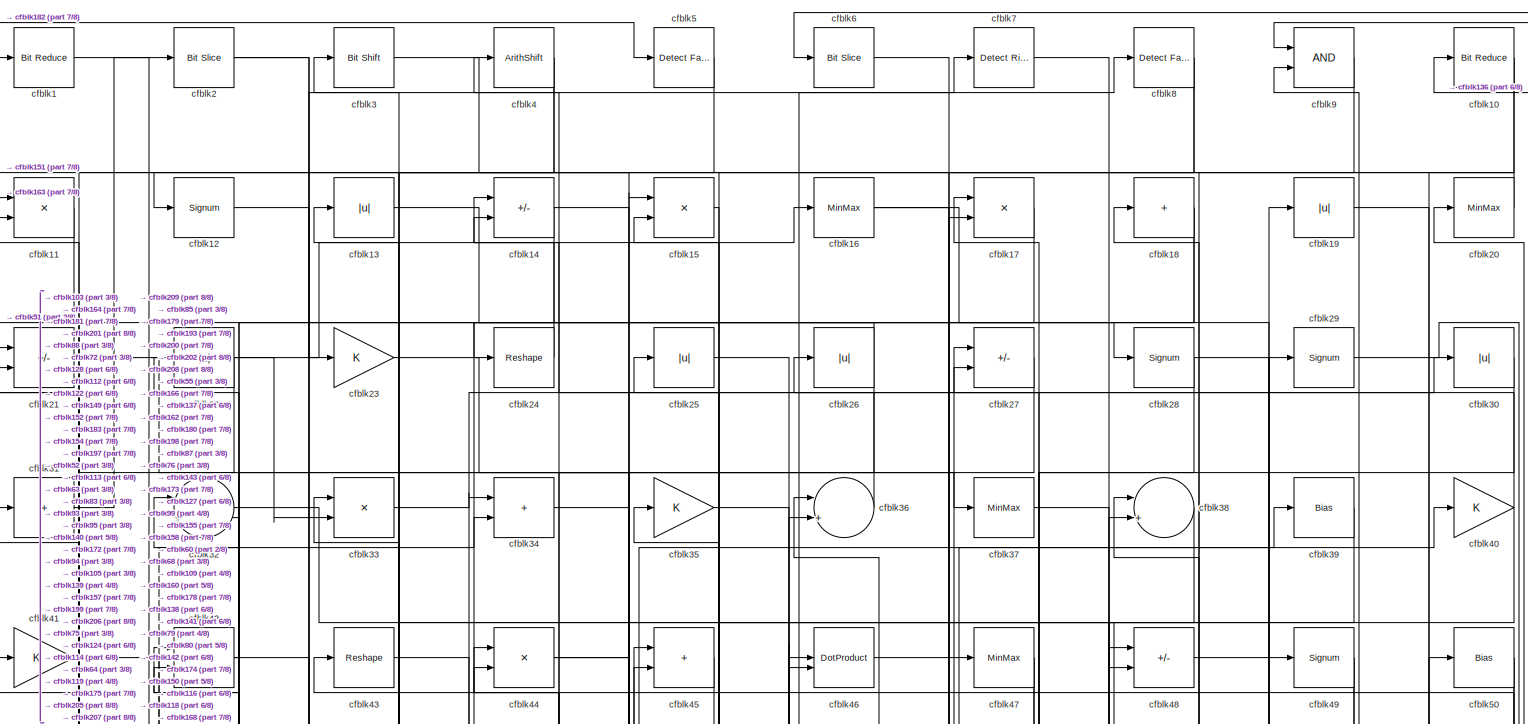
[diagram: root canvas - part 1/8, full width, top band]
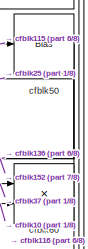
[diagram: root canvas - part 2/8, top right region]
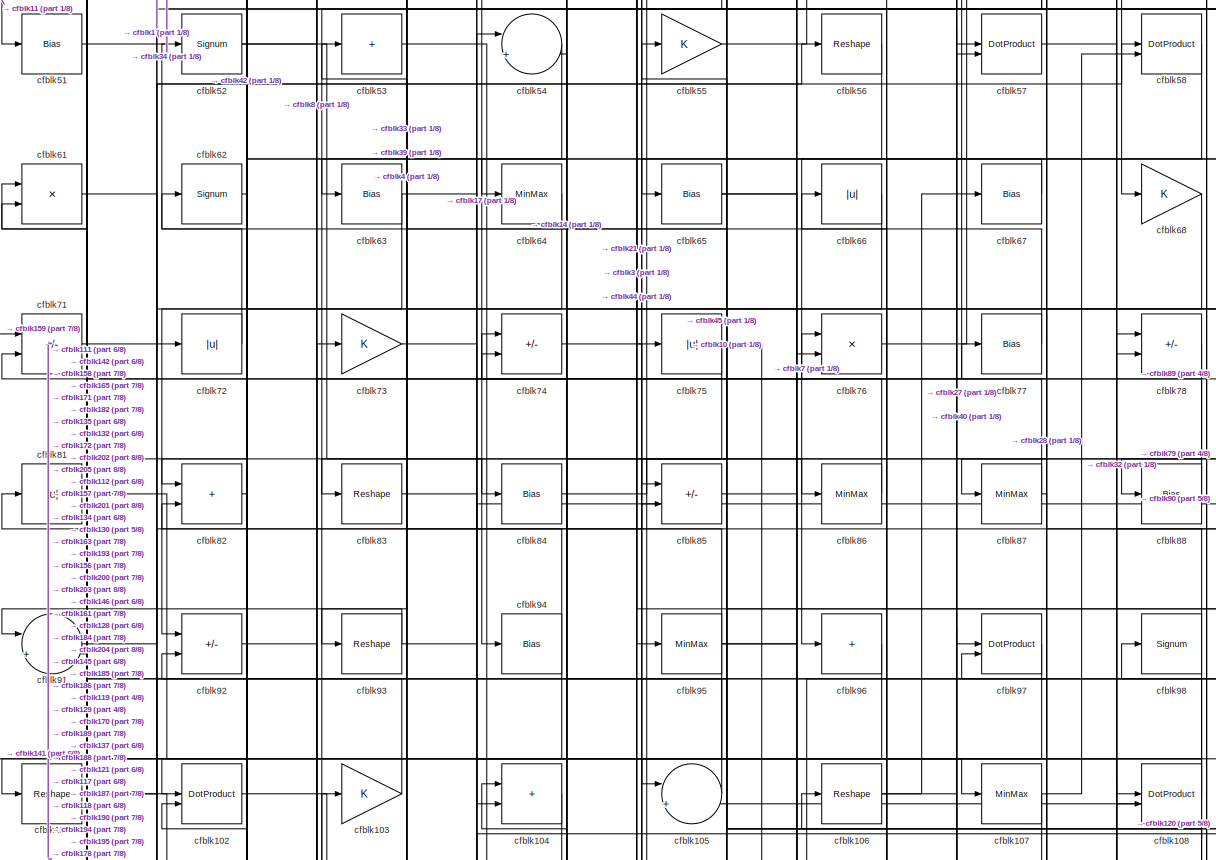
[diagram: root canvas - part 3/8, full width, middle band]
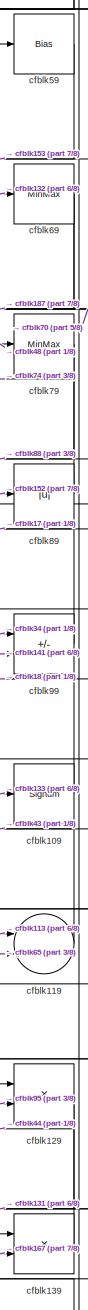
[diagram: root canvas - part 4/8, middle right region]
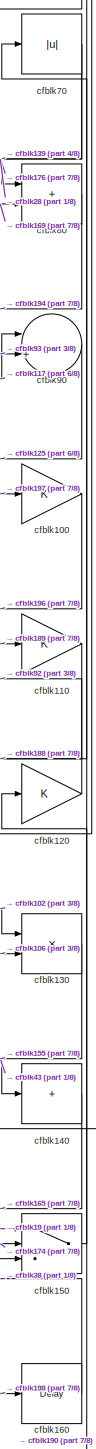
[diagram: root canvas - part 5/8, middle right region]
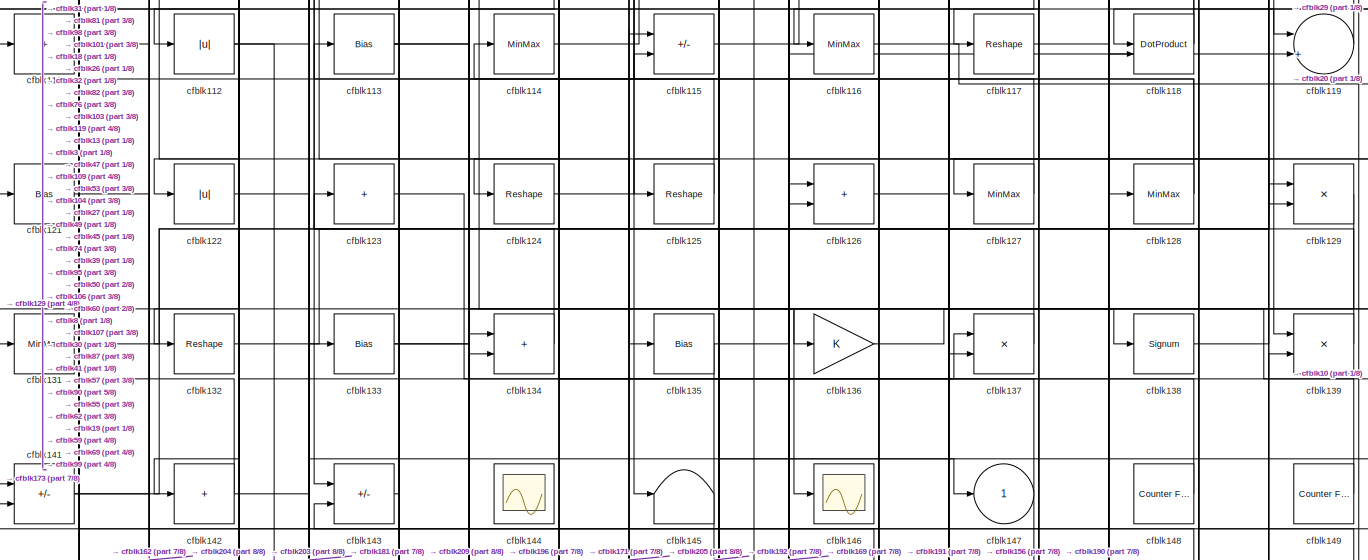
[diagram: root canvas - part 6/8, full width, middle band]
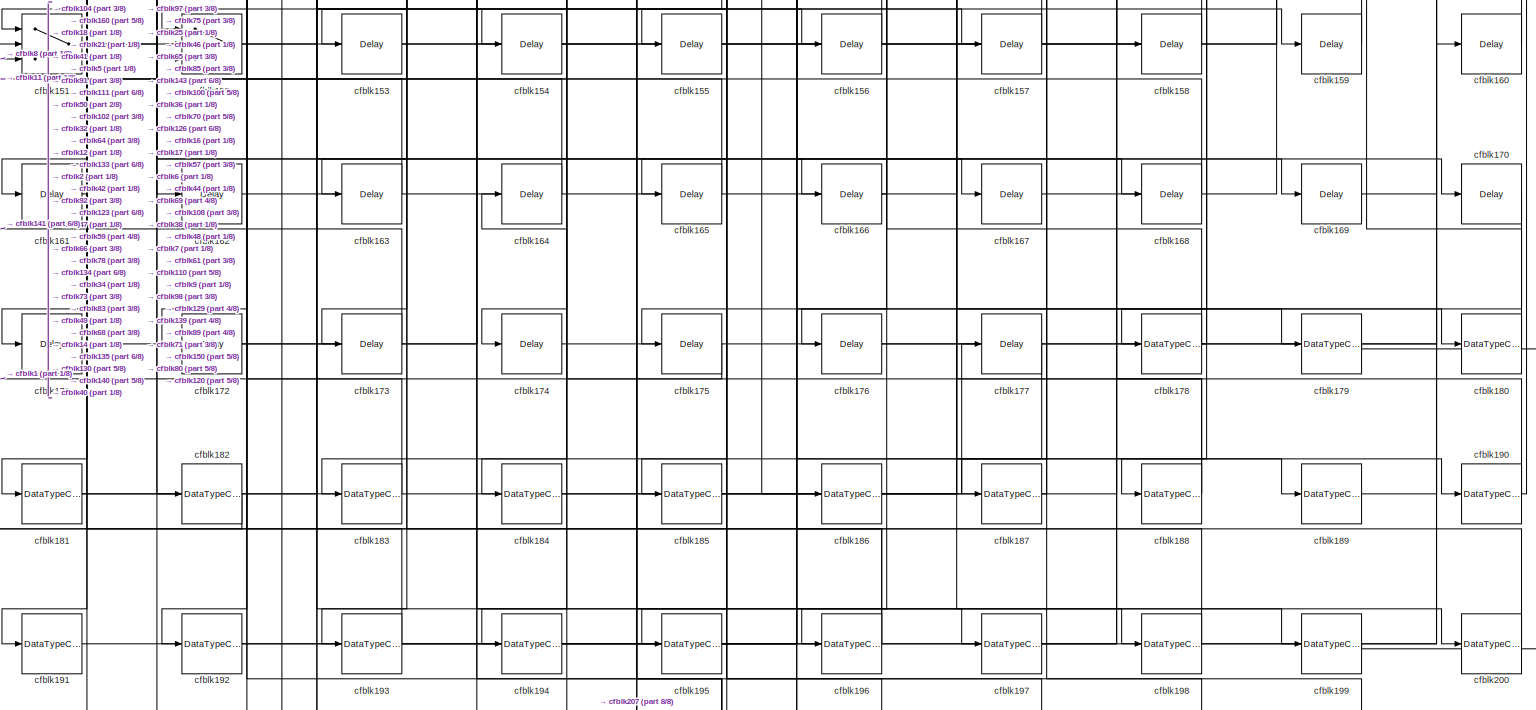
[diagram: root canvas - part 7/8, full width, bottom band]
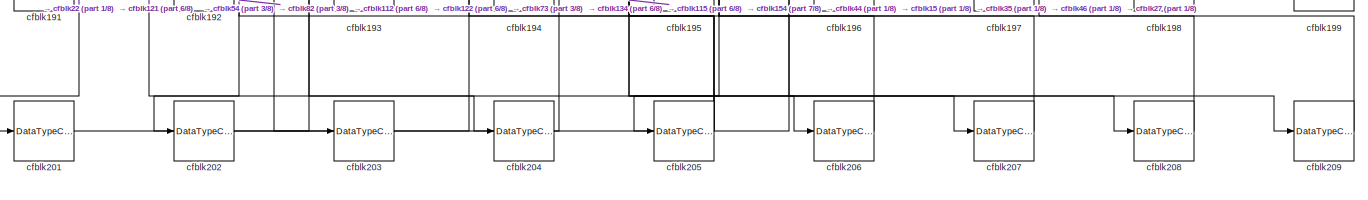
[diagram: root canvas - part 8/8, full width, bottom band]
MODEL slx_c928e4ad2542
KIND model
CONFIG AbsTol = auto
CONFIG EnableMultiTasking = off
CONFIG FixedStep = auto
CONFIG MaxStep = auto
CONFIG MinStep = auto
CONFIG RelTol = 1e-3
CONFIG SampleTimeConstraint = Unconstrained
CONFIG SolverName = VariableStepAuto
CONFIG StartTime = 0.0
CONFIG StopTime = 10.0
BLOCK [Reference] cfblk1  REF=hdlsllib/Logic and Bit
Operations/Bit Reduce
  SourceBlock = hdlsllib/Logic and Bit\nOperations/Bit Reduce
  SourceType = Bit Reduce
BLOCK [Reference] cfblk10  REF=hdlsllib/Logic and Bit
Operations/Bit Reduce
  SourceBlock = hdlsllib/Logic and Bit\nOperations/Bit Reduce
  SourceType = Bit Reduce
BLOCK [Gain] cfblk100
BLOCK [Reshape] cfblk101
BLOCK [DotProduct] cfblk102
  OutDataTypeStr = Inherit: Inherit via internal rule
BLOCK [Gain] cfblk103
BLOCK [Sum] cfblk104
  IconShape = rectangular
BLOCK [Sum] cfblk105
  Inputs = |++
BLOCK [Reshape] cfblk106
BLOCK [MinMax] cfblk107
BLOCK [DotProduct] cfblk108
  OutDataTypeStr = Inherit: Inherit via internal rule
BLOCK [Signum] cfblk109
BLOCK [Product] cfblk11
  Inputs = */
  RndMeth = Zero
  SaturateOnIntegerOverflow = on
BLOCK [Gain] cfblk110
BLOCK [Sum] cfblk111
  IconShape = rectangular
  Inputs = +
BLOCK [Abs] cfblk112
  SaturateOnIntegerOverflow = off
BLOCK [Bias] cfblk113
  Bias = 0.0
  SaturateOnIntegerOverflow = off
BLOCK [MinMax] cfblk114
BLOCK [Sum] cfblk115
  IconShape = rectangular
  Inputs = +-
BLOCK [MinMax] cfblk116
BLOCK [Reshape] cfblk117
BLOCK [DotProduct] cfblk118
  OutDataTypeStr = Inherit: Inherit via internal rule
BLOCK [Sum] cfblk119
  Inputs = |++
BLOCK [Signum] cfblk12
BLOCK [Gain] cfblk120
BLOCK [Bias] cfblk121
  Bias = 0.0
  SaturateOnIntegerOverflow = off
BLOCK [Abs] cfblk122
  SaturateOnIntegerOverflow = off
BLOCK [Sum] cfblk123
  IconShape = rectangular
  Inputs = +
BLOCK [Reshape] cfblk124
BLOCK [Reshape] cfblk125
BLOCK [Sum] cfblk126
  IconShape = rectangular
BLOCK [MinMax] cfblk127
BLOCK [MinMax] cfblk128
BLOCK [Product] cfblk129
  Inputs = */
  RndMeth = Zero
  SaturateOnIntegerOverflow = on
BLOCK [Abs] cfblk13
  SaturateOnIntegerOverflow = off
BLOCK [Product] cfblk130
  Inputs = */
  RndMeth = Zero
  SaturateOnIntegerOverflow = on
BLOCK [MinMax] cfblk131
BLOCK [Reshape] cfblk132
BLOCK [Bias] cfblk133
  Bias = 0.0
  SaturateOnIntegerOverflow = off
BLOCK [Sum] cfblk134
  IconShape = rectangular
BLOCK [Bias] cfblk135
  Bias = 0.0
  SaturateOnIntegerOverflow = off
BLOCK [Gain] cfblk136
BLOCK [Product] cfblk137
  Inputs = */
  RndMeth = Zero
  SaturateOnIntegerOverflow = on
BLOCK [Signum] cfblk138
BLOCK [Product] cfblk139
  Inputs = */
  RndMeth = Zero
  SaturateOnIntegerOverflow = on
BLOCK [Sum] cfblk14
  IconShape = rectangular
  Inputs = +-
BLOCK [Sum] cfblk140
  IconShape = rectangular
  Inputs = +
BLOCK [Sum] cfblk141
  IconShape = rectangular
  Inputs = +-
BLOCK [Sum] cfblk142
  IconShape = rectangular
  Inputs = +
BLOCK [Sum] cfblk143
  IconShape = rectangular
  Inputs = +-
BLOCK [Scope] cfblk144
  Floating = on
  NumInputPorts = 1
  ScopeSpecificationString = Simulink.scopes.TimeScopeBlockCfg('CurrentConfiguration', extmgr.ConfigurationSet(extmgr.Configuration('Core','General UI',true,'FigureColor',[0.156862745098039 0.156862745098039 0.156862745098039]),extmgr.Configuration('Core','Source UI',true),extmgr.Configuration('Sources','WiredSimulink',true,'DataLoggingVariableName','ScopeData1','DataLoggingSaveFormat','StructureWithTime','DataLoggingLimitDat...<+2713ch>
BLOCK [Terminator] cfblk145
BLOCK [Scope] cfblk146
  Floating = off
  NumInputPorts = 1
  ScopeSpecificationString = Simulink.scopes.TimeScopeBlockCfg('CurrentConfiguration', extmgr.ConfigurationSet(extmgr.Configuration('Core','General UI',true),extmgr.Configuration('Core','Source UI',true),extmgr.Configuration('Sources','WiredSimulink',true,'DataLoggingVariableName','ScopeData2','DataLoggingSaveFormat','Array','DataLoggingLimitDataPoints',true,'DataLoggingDecimation','1'),extmgr.Configuration('Visuals','Time Do...<+868ch>
BLOCK [Outport] cfblk147
  VectorParamsAs1DForOutWhenUnconnected = off
BLOCK [Reference] cfblk148  REF=hdlsllib/Sources/Counter
Free-Running
  SourceBlock = hdlsllib/Sources/Counter\nFree-Running
  SourceType = Counter Free-Running
BLOCK [Reference] cfblk149  REF=hdlsllib/Sources/Counter
Free-Running
  SourceBlock = hdlsllib/Sources/Counter\nFree-Running
  SourceType = Counter Free-Running
BLOCK [Product] cfblk15
  Inputs = */
  RndMeth = Zero
  SaturateOnIntegerOverflow = on
BLOCK [Switch] cfblk150
  InputSameDT = off
  SaturateOnIntegerOverflow = off
BLOCK [Switch] cfblk151
  InputSameDT = off
  SaturateOnIntegerOverflow = off
BLOCK [Switch] cfblk152
  InputSameDT = off
  SaturateOnIntegerOverflow = off
BLOCK [Delay] cfblk153
  InputPortMap = u0
  SampleTime = 1
BLOCK [Delay] cfblk154
  InputPortMap = u0
  SampleTime = 1
BLOCK [Delay] cfblk155
  InputPortMap = u0
  SampleTime = 1
BLOCK [Delay] cfblk156
  InputPortMap = u0
  SampleTime = 1
BLOCK [Delay] cfblk157
  InputPortMap = u0
  SampleTime = 1
BLOCK [Delay] cfblk158
  InputPortMap = u0
  SampleTime = 1
BLOCK [Delay] cfblk159
  InputPortMap = u0
  SampleTime = 1
BLOCK [MinMax] cfblk16
BLOCK [Delay] cfblk160
  InputPortMap = u0
  SampleTime = 1
BLOCK [Delay] cfblk161
  InputPortMap = u0
  SampleTime = 1
BLOCK [Delay] cfblk162
  InputPortMap = u0
  SampleTime = 1
BLOCK [Delay] cfblk163
  InputPortMap = u0
  SampleTime = 1
BLOCK [Delay] cfblk164
  InputPortMap = u0
  SampleTime = 1
BLOCK [Delay] cfblk165
  InputPortMap = u0
  SampleTime = 1
BLOCK [Delay] cfblk166
  InputPortMap = u0
  SampleTime = 1
BLOCK [Delay] cfblk167
  InputPortMap = u0
  SampleTime = 1
BLOCK [Delay] cfblk168
  InputPortMap = u0
  SampleTime = 1
BLOCK [Delay] cfblk169
  InputPortMap = u0
  SampleTime = 1
BLOCK [Product] cfblk17
  Inputs = */
  RndMeth = Zero
  SaturateOnIntegerOverflow = on
BLOCK [Delay] cfblk170
  InputPortMap = u0
  SampleTime = 1
BLOCK [Delay] cfblk171
  InputPortMap = u0
  SampleTime = 1
BLOCK [Delay] cfblk172
  InputPortMap = u0
  SampleTime = 1
BLOCK [Delay] cfblk173
  InputPortMap = u0
  SampleTime = 1
BLOCK [Delay] cfblk174
  InputPortMap = u0
  SampleTime = 1
BLOCK [Delay] cfblk175
  InputPortMap = u0
  SampleTime = 1
BLOCK [Delay] cfblk176
  InputPortMap = u0
  SampleTime = 1
BLOCK [Delay] cfblk177
  InputPortMap = u0
  SampleTime = 1
BLOCK [DataTypeConversion] cfblk178
  RndMeth = Floor
  SaturateOnIntegerOverflow = off
BLOCK [DataTypeConversion] cfblk179
  OutDataTypeStr = uint8
  RndMeth = Floor
  SaturateOnIntegerOverflow = off
BLOCK [Sum] cfblk18
  IconShape = rectangular
  Inputs = +
BLOCK [DataTypeConversion] cfblk180
  OutDataTypeStr = uint8
  RndMeth = Floor
  SaturateOnIntegerOverflow = off
BLOCK [DataTypeConversion] cfblk181
  RndMeth = Floor
  SaturateOnIntegerOverflow = off
BLOCK [DataTypeConversion] cfblk182
  OutDataTypeStr = uint8
  RndMeth = Floor
  SaturateOnIntegerOverflow = off
BLOCK [DataTypeConversion] cfblk183
  OutDataTypeStr = uint8
  RndMeth = Floor
  SaturateOnIntegerOverflow = off
BLOCK [DataTypeConversion] cfblk184
  OutDataTypeStr = uint8
  RndMeth = Floor
  SaturateOnIntegerOverflow = off
BLOCK [DataTypeConversion] cfblk185
  OutDataTypeStr = uint8
  RndMeth = Floor
  SaturateOnIntegerOverflow = off
BLOCK [DataTypeConversion] cfblk186
  OutDataTypeStr = uint8
  RndMeth = Floor
  SaturateOnIntegerOverflow = off
BLOCK [DataTypeConversion] cfblk187
  OutDataTypeStr = uint8
  RndMeth = Floor
  SaturateOnIntegerOverflow = off
BLOCK [DataTypeConversion] cfblk188
  RndMeth = Floor
  SaturateOnIntegerOverflow = off
BLOCK [DataTypeConversion] cfblk189
  OutDataTypeStr = uint8
  RndMeth = Floor
  SaturateOnIntegerOverflow = off
BLOCK [Abs] cfblk19
  SaturateOnIntegerOverflow = off
BLOCK [DataTypeConversion] cfblk190
  RndMeth = Floor
  SaturateOnIntegerOverflow = off
BLOCK [DataTypeConversion] cfblk191
  OutDataTypeStr = uint8
  RndMeth = Floor
  SaturateOnIntegerOverflow = off
BLOCK [DataTypeConversion] cfblk192
  OutDataTypeStr = uint8
  RndMeth = Floor
  SaturateOnIntegerOverflow = off
BLOCK [DataTypeConversion] cfblk193
  RndMeth = Floor
  SaturateOnIntegerOverflow = off
BLOCK [DataTypeConversion] cfblk194
  OutDataTypeStr = uint8
  RndMeth = Floor
  SaturateOnIntegerOverflow = off
BLOCK [DataTypeConversion] cfblk195
  OutDataTypeStr = uint8
  RndMeth = Floor
  SaturateOnIntegerOverflow = off
BLOCK [DataTypeConversion] cfblk196
  RndMeth = Floor
  SaturateOnIntegerOverflow = off
BLOCK [DataTypeConversion] cfblk197
  OutDataTypeStr = uint8
  RndMeth = Floor
  SaturateOnIntegerOverflow = off
BLOCK [DataTypeConversion] cfblk198
  RndMeth = Floor
  SaturateOnIntegerOverflow = off
BLOCK [DataTypeConversion] cfblk199
  OutDataTypeStr = uint8
  RndMeth = Floor
  SaturateOnIntegerOverflow = off
BLOCK [Reference] cfblk2  REF=hdlsllib/Logic and Bit
Operations/Bit Slice
  SourceBlock = hdlsllib/Logic and Bit\nOperations/Bit Slice
  SourceType = Bit Slice
BLOCK [MinMax] cfblk20
BLOCK [DataTypeConversion] cfblk200
  OutDataTypeStr = uint8
  RndMeth = Floor
  SaturateOnIntegerOverflow = off
BLOCK [DataTypeConversion] cfblk201
  OutDataTypeStr = uint8
  RndMeth = Floor
  SaturateOnIntegerOverflow = off
BLOCK [DataTypeConversion] cfblk202
  OutDataTypeStr = uint8
  RndMeth = Floor
  SaturateOnIntegerOverflow = off
BLOCK [DataTypeConversion] cfblk203
  OutDataTypeStr = uint8
  RndMeth = Floor
  SaturateOnIntegerOverflow = off
BLOCK [DataTypeConversion] cfblk204
  OutDataTypeStr = uint8
  RndMeth = Floor
  SaturateOnIntegerOverflow = off
BLOCK [DataTypeConversion] cfblk205
  RndMeth = Floor
  SaturateOnIntegerOverflow = off
BLOCK [DataTypeConversion] cfblk206
  OutDataTypeStr = uint8
  RndMeth = Floor
  SaturateOnIntegerOverflow = off
BLOCK [DataTypeConversion] cfblk207
  OutDataTypeStr = uint8
  RndMeth = Floor
  SaturateOnIntegerOverflow = off
BLOCK [DataTypeConversion] cfblk208
  OutDataTypeStr = uint8
  RndMeth = Floor
  SaturateOnIntegerOverflow = off
BLOCK [DataTypeConversion] cfblk209
  OutDataTypeStr = uint8
  RndMeth = Floor
  SaturateOnIntegerOverflow = off
BLOCK [Sum] cfblk21
  IconShape = rectangular
  Inputs = +-
BLOCK [Abs] cfblk22
  SaturateOnIntegerOverflow = off
BLOCK [Gain] cfblk23
BLOCK [Reshape] cfblk24
BLOCK [Abs] cfblk25
  SaturateOnIntegerOverflow = off
BLOCK [Abs] cfblk26
  SaturateOnIntegerOverflow = off
BLOCK [Sum] cfblk27
  IconShape = rectangular
  Inputs = +-
BLOCK [Signum] cfblk28
BLOCK [Signum] cfblk29
BLOCK [Reference] cfblk3  REF=hdlsllib/Logic and Bit
Operations/Bit Shift
  SourceBlock = hdlsllib/Logic and Bit\nOperations/Bit Shift
  SourceType = Bit Shift
BLOCK [Abs] cfblk30
  SaturateOnIntegerOverflow = off
BLOCK [Sum] cfblk31
  IconShape = rectangular
  Inputs = +
BLOCK [Sum] cfblk32
  Inputs = |++
BLOCK [Product] cfblk33
  Inputs = */
  RndMeth = Zero
  SaturateOnIntegerOverflow = on
BLOCK [Sum] cfblk34
  IconShape = rectangular
BLOCK [Gain] cfblk35
BLOCK [Sum] cfblk36
  Inputs = |++
BLOCK [MinMax] cfblk37
BLOCK [Sum] cfblk38
  Inputs = |++
BLOCK [Bias] cfblk39
  Bias = 0.0
  SaturateOnIntegerOverflow = off
BLOCK [ArithShift] cfblk4
  BitShiftNumber = 8
  InputPortMap = u0
BLOCK [Gain] cfblk40
BLOCK [Gain] cfblk41
BLOCK [Product] cfblk42
  Inputs = */
  RndMeth = Zero
  SaturateOnIntegerOverflow = on
BLOCK [Reshape] cfblk43
BLOCK [Product] cfblk44
  Inputs = */
  RndMeth = Zero
  SaturateOnIntegerOverflow = on
BLOCK [Sum] cfblk45
  IconShape = rectangular
BLOCK [DotProduct] cfblk46
  OutDataTypeStr = Inherit: Inherit via internal rule
BLOCK [MinMax] cfblk47
BLOCK [Sum] cfblk48
  IconShape = rectangular
  Inputs = +-
BLOCK [Signum] cfblk49
BLOCK [Reference] cfblk5  REF=hdlsllib/Logic and Bit
Operations/Detect Fall
Nonpositive
  SourceBlock = hdlsllib/Logic and Bit\nOperations/Detect Fall\nNonpositive
  SourceType = Detect Fall Nonpositive
BLOCK [Bias] cfblk50
  Bias = 0.0
  SaturateOnIntegerOverflow = off
BLOCK [Bias] cfblk51
  Bias = 0.0
  SaturateOnIntegerOverflow = off
BLOCK [Signum] cfblk52
BLOCK [Sum] cfblk53
  IconShape = rectangular
  Inputs = +
BLOCK [Sum] cfblk54
  Inputs = |++
BLOCK [Gain] cfblk55
BLOCK [Reshape] cfblk56
BLOCK [DotProduct] cfblk57
  OutDataTypeStr = Inherit: Inherit via internal rule
BLOCK [DotProduct] cfblk58
  OutDataTypeStr = Inherit: Inherit via internal rule
BLOCK [Bias] cfblk59
  Bias = 0.0
  SaturateOnIntegerOverflow = off
BLOCK [Reference] cfblk6  REF=hdlsllib/Logic and Bit
Operations/Bit Slice
  SourceBlock = hdlsllib/Logic and Bit\nOperations/Bit Slice
  SourceType = Bit Slice
BLOCK [Product] cfblk60
  Inputs = */
  RndMeth = Zero
  SaturateOnIntegerOverflow = on
BLOCK [Product] cfblk61
  Inputs = */
  RndMeth = Zero
  SaturateOnIntegerOverflow = on
BLOCK [Signum] cfblk62
BLOCK [Bias] cfblk63
  Bias = 0.0
  SaturateOnIntegerOverflow = off
BLOCK [MinMax] cfblk64
BLOCK [Bias] cfblk65
  Bias = 0.0
  SaturateOnIntegerOverflow = off
BLOCK [Abs] cfblk66
  SaturateOnIntegerOverflow = off
BLOCK [Bias] cfblk67
  Bias = 0.0
  SaturateOnIntegerOverflow = off
BLOCK [Gain] cfblk68
BLOCK [MinMax] cfblk69
BLOCK [Reference] cfblk7  REF=hdlsllib/Logic and Bit
Operations/Detect Rise
Nonnegative
  SourceBlock = hdlsllib/Logic and Bit\nOperations/Detect Rise\nNonnegative
  SourceType = Detect Rise Nonnegative
BLOCK [Abs] cfblk70
  SaturateOnIntegerOverflow = off
BLOCK [Sum] cfblk71
  IconShape = rectangular
  Inputs = +-
BLOCK [Abs] cfblk72
  SaturateOnIntegerOverflow = off
BLOCK [Gain] cfblk73
BLOCK [Sum] cfblk74
  IconShape = rectangular
  Inputs = +-
BLOCK [Abs] cfblk75
  SaturateOnIntegerOverflow = off
BLOCK [Product] cfblk76
  Inputs = */
  RndMeth = Zero
  SaturateOnIntegerOverflow = on
BLOCK [Bias] cfblk77
  Bias = 0.0
  SaturateOnIntegerOverflow = off
BLOCK [Sum] cfblk78
  IconShape = rectangular
  Inputs = +-
BLOCK [MinMax] cfblk79
BLOCK [Reference] cfblk8  REF=hdlsllib/Logic and Bit
Operations/Detect Fall
Negative
  SourceBlock = hdlsllib/Logic and Bit\nOperations/Detect Fall\nNegative
  SourceType = Detect Fall Negative
BLOCK [Sum] cfblk80
  IconShape = rectangular
BLOCK [Abs] cfblk81
  SaturateOnIntegerOverflow = off
BLOCK [Sum] cfblk82
  IconShape = rectangular
BLOCK [Reshape] cfblk83
BLOCK [Bias] cfblk84
  Bias = 0.0
  SaturateOnIntegerOverflow = off
BLOCK [Sum] cfblk85
  IconShape = rectangular
  Inputs = +-
BLOCK [MinMax] cfblk86
BLOCK [MinMax] cfblk87
BLOCK [Bias] cfblk88
  Bias = 0.0
  SaturateOnIntegerOverflow = off
BLOCK [Abs] cfblk89
  SaturateOnIntegerOverflow = off
BLOCK [Logic] cfblk9
  AllPortsSameDT = off
  OutDataTypeStr = boolean
BLOCK [Sum] cfblk90
  Inputs = |++
BLOCK [Sum] cfblk91
  Inputs = |++
BLOCK [Sum] cfblk92
  IconShape = rectangular
  Inputs = +-
BLOCK [Reshape] cfblk93
BLOCK [Bias] cfblk94
  Bias = 0.0
  SaturateOnIntegerOverflow = off
BLOCK [MinMax] cfblk95
BLOCK [Sum] cfblk96
  IconShape = rectangular
  Inputs = +
BLOCK [DotProduct] cfblk97
  OutDataTypeStr = Inherit: Inherit via internal rule
BLOCK [Signum] cfblk98
BLOCK [Sum] cfblk99
  IconShape = rectangular
  Inputs = +-
LINE cfblk100:1 -> cfblk196:1
NET cfblk101:1 -> cfblk135:1, cfblk85:2
LINE cfblk102:1 -> cfblk130:1
LINE cfblk103:1 -> cfblk11:2
LINE cfblk104:1 -> cfblk161:1
LINE cfblk105:1 -> cfblk14:2
NET cfblk106:1 -> cfblk130:2, cfblk67:1
NET cfblk107:1 -> cfblk121:1, cfblk58:2
NET cfblk108:1 -> cfblk105:1, cfblk105:2, cfblk71:2
LINE cfblk109:1 -> cfblk18:1
NET cfblk10:1 -> cfblk60:2, cfblk85:1
LINE cfblk110:1 -> cfblk188:1
LINE cfblk111:1 -> cfblk162:1
NET cfblk112:1 -> cfblk203:1, cfblk76:1
NET cfblk113:1 -> cfblk115:2, cfblk119:1, cfblk3:1
LINE cfblk114:1 -> cfblk39:1
LINE cfblk115:1 -> cfblk50:1
LINE cfblk116:1 -> cfblk20:1
LINE cfblk117:1 -> cfblk90:1
NET cfblk118:1 -> cfblk55:1, cfblk62:1
LINE cfblk119:1 -> cfblk43:1
LINE cfblk11:1 -> cfblk51:1
LINE cfblk120:1 -> cfblk92:2
LINE cfblk121:1 -> cfblk204:1
LINE cfblk122:1 -> cfblk209:1
LINE cfblk123:1 -> cfblk137:1
LINE cfblk124:1 -> cfblk45:2
LINE cfblk125:1 -> cfblk113:1
LINE cfblk126:1 -> cfblk190:1
LINE cfblk127:1 -> cfblk45:1
NET cfblk128:1 -> cfblk104:1, cfblk31:1
LINE cfblk129:1 -> cfblk131:1
LINE cfblk12:1 -> cfblk197:1
LINE cfblk130:1 -> cfblk155:1
LINE cfblk131:1 -> cfblk59:1
LINE cfblk132:1 -> cfblk69:1
NET cfblk133:1 -> cfblk109:1, cfblk138:1
LINE cfblk134:1 -> cfblk103:1
NET cfblk135:1 -> cfblk169:1, cfblk192:1
LINE cfblk136:1 -> cfblk10:1
LINE cfblk137:1 -> cfblk106:1
LINE cfblk138:1 -> cfblk29:1
LINE cfblk139:1 -> cfblk44:1
LINE cfblk13:1 -> cfblk28:1
LINE cfblk140:1 -> cfblk165:1
NET cfblk141:1 -> cfblk19:1, cfblk99:2
NET cfblk142:1 -> cfblk147:1, cfblk81:1
LINE cfblk143:1 -> cfblk13:1
LINE cfblk148:1 -> cfblk114:1
LINE cfblk149:1 -> cfblk32:1
NET cfblk14:1 -> cfblk152:1, cfblk199:1
LINE cfblk150:1 -> cfblk70:1
NET cfblk151:1 -> cfblk166:1, cfblk167:1
NET cfblk152:1 -> cfblk159:1, cfblk89:1
LINE cfblk153:1 -> cfblk129:1
LINE cfblk154:1 -> cfblk207:1
LINE cfblk155:1 -> cfblk48:1
LINE cfblk156:1 -> cfblk143:2
LINE cfblk157:1 -> cfblk44:2
LINE cfblk158:1 -> cfblk61:2
LINE cfblk159:1 -> cfblk71:1
LINE cfblk15:1 -> cfblk205:1
LINE cfblk160:1 -> cfblk38:1
LINE cfblk161:1 -> cfblk191:1
LINE cfblk162:1 -> cfblk17:2
LINE cfblk163:1 -> cfblk11:1
LINE cfblk164:1 -> cfblk21:2
LINE cfblk165:1 -> cfblk91:2
LINE cfblk166:1 -> cfblk36:1
LINE cfblk167:1 -> cfblk139:2
LINE cfblk168:1 -> cfblk42:2
LINE cfblk169:1 -> cfblk80:2
NET cfblk16:1 -> cfblk180:1, cfblk49:1
LINE cfblk170:1 -> cfblk195:1
LINE cfblk171:1 -> cfblk134:2
LINE cfblk172:1 -> cfblk34:1
LINE cfblk173:1 -> cfblk141:1
LINE cfblk174:1 -> cfblk150:2
LINE cfblk175:1 -> cfblk1:1
LINE cfblk176:1 -> cfblk150:3
LINE cfblk177:1 -> cfblk183:1
NET cfblk178:1 -> cfblk66:1, cfblk98:1
LINE cfblk179:1 -> cfblk9:1
LINE cfblk17:1 -> cfblk94:1
LINE cfblk180:1 -> cfblk9:2
NET cfblk181:1 -> cfblk133:1, cfblk38:2
LINE cfblk182:1 -> cfblk5:1
LINE cfblk183:1 -> cfblk32:2
LINE cfblk184:1 -> cfblk177:1
LINE cfblk185:1 -> cfblk57:2
LINE cfblk186:1 -> cfblk97:1
LINE cfblk187:1 -> cfblk97:2
NET cfblk188:1 -> cfblk164:1, cfblk57:1
LINE cfblk189:1 -> cfblk110:1
NET cfblk18:1 -> cfblk112:1, cfblk151:1
NET cfblk190:1 -> cfblk108:1, cfblk120:1
LINE cfblk191:1 -> cfblk126:1
LINE cfblk192:1 -> cfblk126:2
NET cfblk193:1 -> cfblk102:2, cfblk36:2
LINE cfblk194:1 -> cfblk78:1
LINE cfblk195:1 -> cfblk78:2
NET cfblk196:1 -> cfblk123:1, cfblk151:2
LINE cfblk197:1 -> cfblk100:1
NET cfblk198:1 -> cfblk160:1, cfblk41:1
LINE cfblk199:1 -> cfblk6:1
LINE cfblk19:1 -> cfblk150:1
LINE cfblk1:1 -> cfblk72:1
LINE cfblk200:1 -> cfblk46:1
LINE cfblk201:1 -> cfblk73:1
LINE cfblk202:1 -> cfblk46:2
LINE cfblk203:1 -> cfblk54:1
LINE cfblk204:1 -> cfblk54:2
NET cfblk205:1 -> cfblk115:1, cfblk134:1, cfblk82:2
LINE cfblk206:1 -> cfblk15:1
LINE cfblk207:1 -> cfblk15:2
LINE cfblk208:1 -> cfblk27:2
LINE cfblk209:1 -> cfblk35:1
LINE cfblk20:1 -> cfblk12:1
LINE cfblk21:1 -> cfblk95:1
NET cfblk22:1 -> cfblk16:1, cfblk201:1, cfblk33:2
LINE cfblk23:1 -> cfblk37:1
LINE cfblk24:1 -> cfblk14:1
LINE cfblk25:1 -> cfblk179:1
NET cfblk26:1 -> cfblk122:1, cfblk24:1
LINE cfblk27:1 -> cfblk124:1
NET cfblk28:1 -> cfblk80:1, cfblk87:1
LINE cfblk29:1 -> cfblk118:1
NET cfblk2:1 -> cfblk168:1, cfblk23:1
LINE cfblk30:1 -> cfblk127:1
LINE cfblk31:1 -> cfblk2:1
LINE cfblk32:1 -> cfblk68:1
LINE cfblk33:1 -> cfblk30:1
LINE cfblk34:1 -> cfblk99:1
LINE cfblk35:1 -> cfblk208:1
LINE cfblk36:1 -> cfblk4:1
LINE cfblk37:1 -> cfblk60:1
LINE cfblk38:1 -> cfblk48:2
LINE cfblk39:1 -> cfblk63:1
LINE cfblk3:1 -> cfblk75:1
NET cfblk40:1 -> cfblk175:1, cfblk26:1
LINE cfblk41:1 -> cfblk128:1
NET cfblk42:1 -> cfblk154:1, cfblk22:1
LINE cfblk43:1 -> cfblk140:1
NET cfblk44:1 -> cfblk206:1, cfblk76:2
LINE cfblk45:1 -> cfblk64:1
LINE cfblk46:1 -> cfblk47:1
NET cfblk47:1 -> cfblk143:1, cfblk173:1
LINE cfblk48:1 -> cfblk79:1
NET cfblk49:1 -> cfblk142:1, cfblk174:1
NET cfblk4:1 -> cfblk83:1, cfblk93:1
NET cfblk50:1 -> cfblk136:1, cfblk152:2
LINE cfblk51:1 -> cfblk34:2
NET cfblk52:1 -> cfblk84:1, cfblk8:1
LINE cfblk53:1 -> cfblk146:1
LINE cfblk54:1 -> cfblk202:1
LINE cfblk55:1 -> cfblk7:1
LINE cfblk56:1 -> cfblk96:1
LINE cfblk57:1 -> cfblk118:2
LINE cfblk58:1 -> cfblk82:1
LINE cfblk59:1 -> cfblk153:1
LINE cfblk5:1 -> cfblk181:1
NET cfblk60:1 -> cfblk116:1, cfblk25:1
LINE cfblk61:1 -> cfblk182:1
LINE cfblk62:1 -> cfblk102:1
NET cfblk63:1 -> cfblk108:2, cfblk92:1
LINE cfblk64:1 -> cfblk172:1
NET cfblk65:1 -> cfblk119:2, cfblk189:1
LINE cfblk66:1 -> cfblk163:1
LINE cfblk67:1 -> cfblk65:1
LINE cfblk68:1 -> cfblk184:1
NET cfblk69:1 -> cfblk152:3, cfblk187:1
LINE cfblk6:1 -> cfblk198:1
NET cfblk70:1 -> cfblk139:1, cfblk176:1
LINE cfblk71:1 -> cfblk58:1
LINE cfblk72:1 -> cfblk52:1
LINE cfblk73:1 -> cfblk200:1
LINE cfblk74:1 -> cfblk145:1
NET cfblk75:1 -> cfblk171:1, cfblk186:1
LINE cfblk76:1 -> cfblk40:1
LINE cfblk77:1 -> cfblk53:1
LINE cfblk78:1 -> cfblk193:1
LINE cfblk79:1 -> cfblk88:1
LINE cfblk7:1 -> cfblk158:1
LINE cfblk80:1 -> cfblk194:1
LINE cfblk81:1 -> cfblk107:1
LINE cfblk82:1 -> cfblk132:1
LINE cfblk83:1 -> cfblk156:1
LINE cfblk84:1 -> cfblk86:1
LINE cfblk85:1 -> cfblk170:1
LINE cfblk86:1 -> cfblk61:1
NET cfblk87:1 -> cfblk117:1, cfblk27:1
LINE cfblk88:1 -> cfblk21:1
LINE cfblk89:1 -> cfblk74:2
NET cfblk8:1 -> cfblk137:2, cfblk151:3
LINE cfblk90:1 -> cfblk125:1
LINE cfblk91:1 -> cfblk56:1
LINE cfblk92:1 -> cfblk157:1
NET cfblk93:1 -> cfblk90:2, cfblk91:1
NET cfblk94:1 -> cfblk104:2, cfblk42:1
NET cfblk95:1 -> cfblk129:2, cfblk141:2, cfblk33:1, cfblk77:1
LINE cfblk96:1 -> cfblk101:1
LINE cfblk97:1 -> cfblk185:1
NET cfblk98:1 -> cfblk111:1, cfblk74:1
LINE cfblk99:1 -> cfblk17:1
LINE cfblk9:1 -> cfblk178:1
note: NET lines group one-source signal fan-out (src -> all destinations, sorted); 1:1 wires keep LINE
